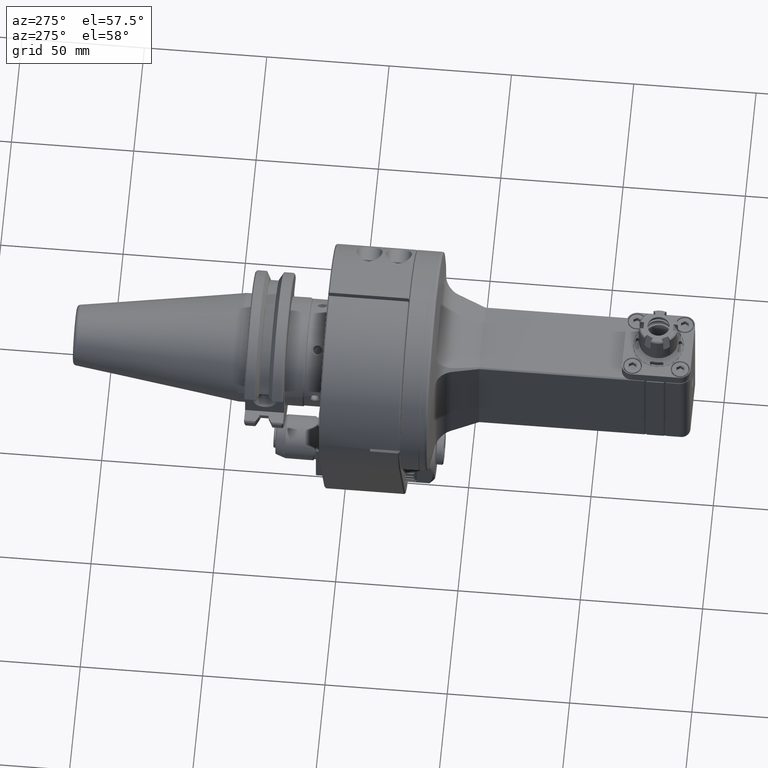
[diagram: clean part render]
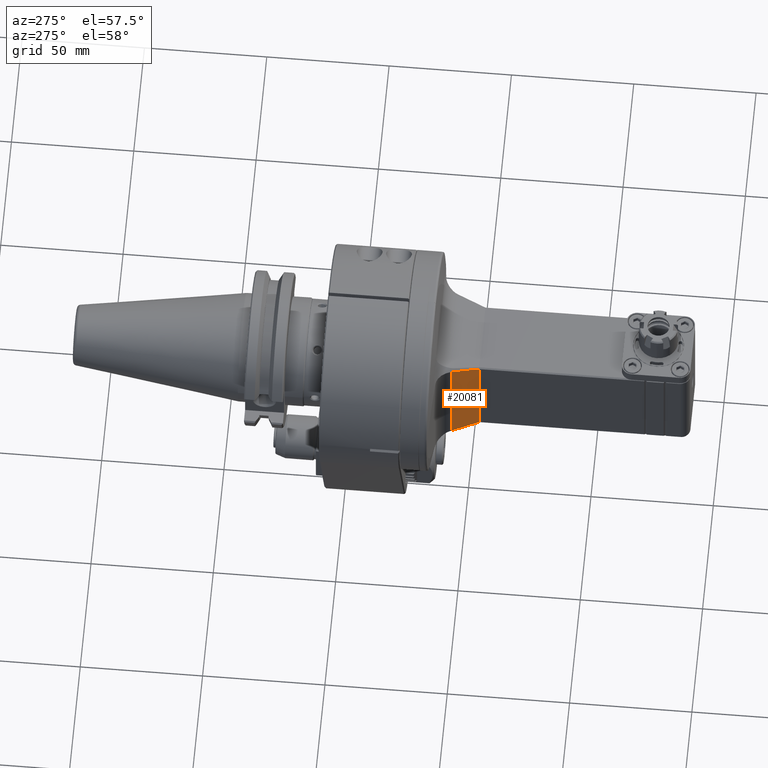
[diagram: same view with one face highlighted and labeled with its STEP entity id]
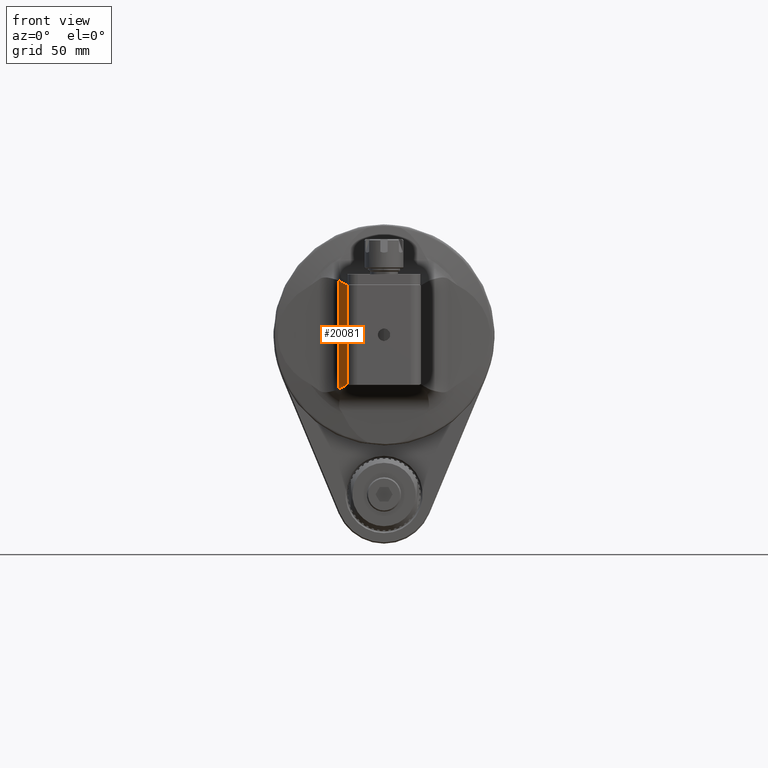
[diagram: same view with one face highlighted and labeled with its STEP entity id]
A machine part, auxiliary view. The second image highlights one B-rep face of the part: STEP entity #20081.
A second angle (front view) of the same face is appended — the face is thin or edge-on in the first view.
In plain terms, the highlighted planar face has unit normal (0.9469, 0.3214, 0).
Its self-contained STEP definition (entity closure, byte-faithful):
#374=ELLIPSE('',#21785,598.218697748398,22.9744675837191);
#375=ELLIPSE('',#21786,599.190516595432,22.99853668462);
#1143=LINE('',#33488,#2945);
#1144=LINE('',#33492,#2946);
#2945=VECTOR('',#25121,40.1492216612);
#2946=VECTOR('',#25124,44.43993367715);
#4942=FACE_OUTER_BOUND('',#6166,.T.);
#6166=EDGE_LOOP('',(#14787,#14788,#14789,#14790));
#8766=VERTEX_POINT('',#33315);
#8800=VERTEX_POINT('',#33444);
#8806=VERTEX_POINT('',#33490);
#8807=VERTEX_POINT('',#33491);
#11059=EDGE_CURVE('',#8800,#8766,#1143,.T.);
#11060=EDGE_CURVE('',#8806,#8807,#1144,.T.);
#11061=EDGE_CURVE('',#8807,#8800,#374,.T.);
#11062=EDGE_CURVE('',#8766,#8806,#375,.T.);
#14787=ORIENTED_EDGE('',*,*,#11060,.T.);
#14788=ORIENTED_EDGE('',*,*,#11061,.T.);
#14789=ORIENTED_EDGE('',*,*,#11059,.T.);
#14790=ORIENTED_EDGE('',*,*,#11062,.T.);
#19258=PLANE('',#21784);
#20081=ADVANCED_FACE('',(#4942),#19258,.F.);
#21784=AXIS2_PLACEMENT_3D('',#33489,#25122,#25123);
#21785=AXIS2_PLACEMENT_3D('',#33493,#25125,#25126);
#21786=AXIS2_PLACEMENT_3D('',#33494,#25127,#25128);
#25121=DIRECTION('',(0.,0.,1.));
#25122=DIRECTION('center_axis',(0.946947514145127,0.321388247225009,0.));
#25123=DIRECTION('ref_axis',(-0.321388247225009,0.946947514145128,0.));
#25124=DIRECTION('',(0.,0.,-1.));
#25125=DIRECTION('center_axis',(-0.946950955503013,-0.321378102104699,5.79613020714149E-5));
#25126=DIRECTION('ref_axis',(0.319767956339266,-0.942188547467029,0.100145869213755));
#25127=DIRECTION('center_axis',(-0.946950958964433,-0.321378091894989,-5.80196291704987E-5));
#25128=DIRECTION('ref_axis',(0.319768790057767,-0.942191023933558,-0.100119904734396));
#33315=CARTESIAN_POINT('',(-14.9,72.,20.0746108306));
#33444=CARTESIAN_POINT('',(-14.9,72.,-20.0746108306));
#33488=CARTESIAN_POINT('',(-14.9,72.,-20.0746108306));
#33489=CARTESIAN_POINT('Origin',(-14.9,72.,-54.));
#33490=CARTESIAN_POINT('',(-18.6304404539,82.99147633739,22.21996683858));
#33491=CARTESIAN_POINT('',(-18.6304404539,82.99147633739,-22.21996683858));
#33492=CARTESIAN_POINT('',(-18.6304404539,82.99147633739,22.21996683858));
#33493=CARTESIAN_POINT('Origin',(-190.502538727299,589.410298599307,-65.8303685950972));
#33494=CARTESIAN_POINT('Origin',(-190.812390217945,590.323281680577,65.9101218558411));